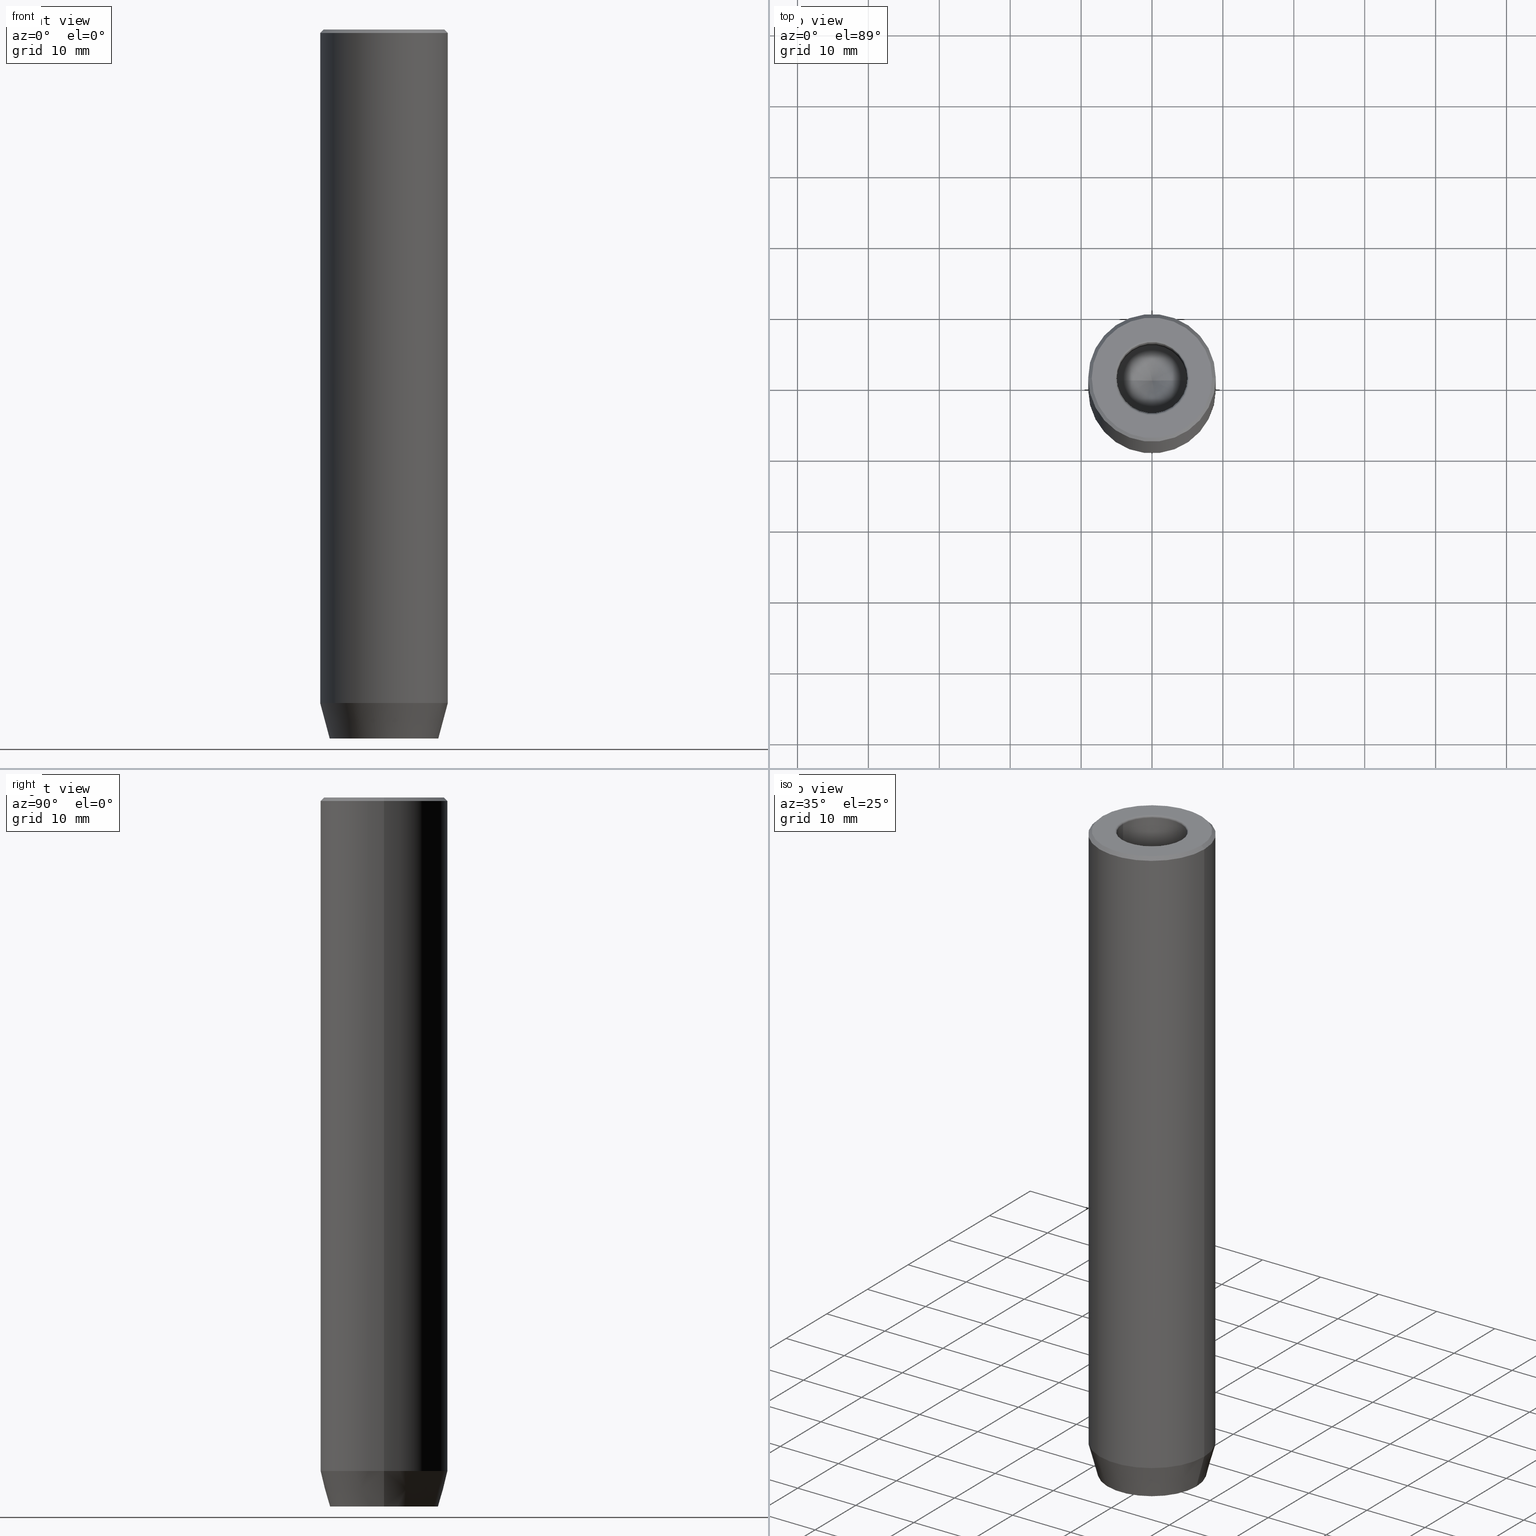
[diagram: canonical four-view strip — front | top / right | iso, engineering-drawing reading convention]
A machine part, canonical four-view strip (front | top / right | iso — engineering-drawing reading convention). The complete STEP part file that produces these views, byte-faithful:
ISO-10303-21;
HEADER;
FILE_DESCRIPTION (( 'STEP AP203' ),
    '1' );
FILE_NAME ('d34d.STEP',
    '2024-01-02T19:10:27',
    ( '' ),
    ( '' ),
    'SwSTEP 2.0',
    'SolidWorks 2019',
    '' );
FILE_SCHEMA (( 'CONFIG_CONTROL_DESIGN' ));
ENDSEC;

DATA;
#1 = DIRECTION ( 'NONE',  ( -0.000000000000000000, -0.000000000000000000, 1.000000000000000000 ) ) ;
#2 = DIRECTION ( 'NONE',  ( 1.224646799147353207E-16, 1.000000000000000000, 0.000000000000000000 ) ) ;
#3 = CARTESIAN_POINT ( 'NONE',  ( 0.000000000000000000, 0.000000000000000000, 0.000000000000000000 ) ) ;
#4 = AXIS2_PLACEMENT_3D ( 'NONE', #120, #448, #29 ) ;
#5 = CC_DESIGN_DATE_AND_TIME_ASSIGNMENT ( #232, #165, ( #350 ) ) ;
#6 = DIRECTION ( 'NONE',  ( -0.000000000000000000, -0.000000000000000000, -1.000000000000000000 ) ) ;
#7 = DIRECTION ( 'NONE',  ( -0.000000000000000000, -0.000000000000000000, 1.000000000000000000 ) ) ;
#8 = LINE ( 'NONE', #147, #43 ) ;
#9 = CARTESIAN_POINT ( 'NONE',  ( -9.000000000000000000, 1.102182119232617714E-15, 0.000000000000000000 ) ) ;
#10 = DIRECTION ( 'NONE',  ( 0.8571673007021120005, 0.000000000000000000, 0.5150380749100547106 ) ) ;
#11 = EDGE_CURVE ( 'NONE', #457, #23, #472, .T. ) ;
#12 = ORIENTED_EDGE ( 'NONE', *, *, #196, .F. ) ;
#13 = LINE ( 'NONE', #492, #134 ) ;
#14 = DIRECTION ( 'NONE',  ( 1.000000000000000000, 0.000000000000000000, 0.000000000000000000 ) ) ;
#15 = VECTOR ( 'NONE', #595, 1000.000000000000000 ) ;
#16 = ORIENTED_EDGE ( 'NONE', *, *, #253, .T. ) ;
#17 = DIRECTION ( 'NONE',  ( -0.000000000000000000, -0.000000000000000000, 1.000000000000000000 ) ) ;
#18 = AXIS2_PLACEMENT_3D ( 'NONE', #593, #379, #193 ) ;
#19 = ORIENTED_EDGE ( 'NONE', *, *, #460, .T. ) ;
#20 = CARTESIAN_POINT ( 'NONE',  ( -4.999999999999997335, 6.123233995736763324E-16, -0.2999999999999999889 ) ) ;
#21 = ADVANCED_FACE ( 'NONE', ( #588 ), #335, .F. ) ;
#22 = LINE ( 'NONE', #211, #257 ) ;
#23 = VERTEX_POINT ( 'NONE', #249 ) ;
#24 = VECTOR ( 'NONE', #107, 1000.000000000000114 ) ;
#25 = ORIENTED_EDGE ( 'NONE', *, *, #37, .T. ) ;
#26 = CARTESIAN_POINT ( 'NONE',  ( 2.168404344971008868E-16, 3.464101615137755275, -100.0000000000000000 ) ) ;
#27 = EDGE_CURVE ( 'NONE', #432, #283, #380, .T. ) ;
#28 = DIRECTION ( 'NONE',  ( 0.8660254037844387076, 0.4999999999999997224, 0.000000000000000000 ) ) ;
#29 = DIRECTION ( 'NONE',  ( 0.8660254037844385966, 0.4999999999999998890, 0.000000000000000000 ) ) ;
#30 = APPROVAL_DATE_TIME ( #57, #542 ) ;
#31 = DATE_AND_TIME ( #445, #396 ) ;
#32 = DIRECTION ( 'NONE',  ( -0.000000000000000000, -0.000000000000000000, 1.000000000000000000 ) ) ;
#33 = APPROVAL_DATE_TIME ( #35, #199 ) ;
#34 = AXIS2_PLACEMENT_3D ( 'NONE', #142, #242, #197 ) ;
#35 = DATE_AND_TIME ( #229, #441 ) ;
#36 = VERTEX_POINT ( 'NONE', #62 ) ;
#37 = EDGE_CURVE ( 'NONE', #600, #133, #209, .T. ) ;
#38 = DIRECTION ( 'NONE',  ( 1.000000000000000000, 0.000000000000000000, 0.000000000000000000 ) ) ;
#39 = EDGE_LOOP ( 'NONE', ( #169, #91, #140, #46 ) ) ;
#40 = ORIENTED_EDGE ( 'NONE', *, *, #440, .F. ) ;
#41 = CARTESIAN_POINT ( 'NONE',  ( -3.000000000000000444, 7.511572993685798115E-16, -100.0000000000000000 ) ) ;
#42 = CARTESIAN_POINT ( 'NONE',  ( -1.499999999999999112, -2.598076211353316012, -94.20000000000000284 ) ) ;
#43 = VECTOR ( 'NONE', #638, 1000.000000000000000 ) ;
#44 = FACE_OUTER_BOUND ( 'NONE', #186, .T. ) ;
#45 = ADVANCED_FACE ( 'NONE', ( #329 ), #539, .T. ) ;
#46 = ORIENTED_EDGE ( 'NONE', *, *, #378, .T. ) ;
#47 = DIRECTION ( 'NONE',  ( 1.000000000000000000, 0.000000000000000000, 0.000000000000000000 ) ) ;
#48 = CARTESIAN_POINT ( 'NONE',  ( 0.000000000000000000, 0.000000000000000000, -20.00000000000000000 ) ) ;
#49 = ORIENTED_EDGE ( 'NONE', *, *, #219, .F. ) ;
#50 = DIRECTION ( 'NONE',  ( -2.503857664561932376E-16, -1.000000000000000000, 0.000000000000000000 ) ) ;
#51 = FACE_OUTER_BOUND ( 'NONE', #128, .T. ) ;
#52 =( NAMED_UNIT ( * ) SI_UNIT ( $, .STERADIAN. ) SOLID_ANGLE_UNIT ( ) );
#53 = CARTESIAN_POINT ( 'NONE',  ( 2.999999999999999556, -7.511572993685796142E-16, -94.20000000000000284 ) ) ;
#54 = LINE ( 'NONE', #590, #308 ) ;
#55 = CARTESIAN_POINT ( 'NONE',  ( 2.999999999999999112, -1.732050807568876971, -100.0000000000000000 ) ) ;
#56 = EDGE_CURVE ( 'NONE', #600, #283, #198, .T. ) ;
#57 = DATE_AND_TIME ( #292, #132 ) ;
#58 = CARTESIAN_POINT ( 'NONE',  ( 0.000000000000000000, 0.000000000000000000, -0.2999999999999999889 ) ) ;
#59 = DIRECTION ( 'NONE',  ( 1.000000000000000000, 0.000000000000000000, 0.000000000000000000 ) ) ;
#60 = APPLICATION_PROTOCOL_DEFINITION ( 'international standard', 'config_control_design', 1994, #500 ) ;
#61 = CARTESIAN_POINT ( 'NONE',  ( 0.000000000000000000, 0.000000000000000000, 0.000000000000000000 ) ) ;
#62 = CARTESIAN_POINT ( 'NONE',  ( -3.000000000000000888, -1.732050807568876527, -100.0000000000000000 ) ) ;
#63 = LINE ( 'NONE', #625, #153 ) ;
#64 = VERTEX_POINT ( 'NONE', #316 ) ;
#65 = CARTESIAN_POINT ( 'NONE',  ( 5.299999999999997158, 0.000000000000000000, -0.2999999999999999889 ) ) ;
#66 =( NAMED_UNIT ( * ) PLANE_ANGLE_UNIT ( ) SI_UNIT ( $, .RADIAN. ) );
#67 = ADVANCED_FACE ( 'NONE', ( #138 ), #327, .F. ) ;
#68 = CIRCLE ( 'NONE', #637, 9.000000000000000000 ) ;
#69 = EDGE_LOOP ( 'NONE', ( #99, #415, #395, #387 ) ) ;
#70 = PERSON_AND_ORGANIZATION_ROLE ( 'design_supplier' ) ;
#71 = CARTESIAN_POINT ( 'NONE',  ( 2.999999999999999556, -7.511572993685796142E-16, -100.0000000000000000 ) ) ;
#72 = VERTEX_POINT ( 'NONE', #381 ) ;
#73 = FACE_OUTER_BOUND ( 'NONE', #136, .T. ) ;
#74 = CARTESIAN_POINT ( 'NONE',  ( -1.499999999999999334, 2.598076211353316456, -94.20000000000000284 ) ) ;
#75 = ADVANCED_FACE ( 'NONE', ( #51 ), #191, .F. ) ;
#76 = ORIENTED_EDGE ( 'NONE', *, *, #455, .T. ) ;
#77 = COORDINATED_UNIVERSAL_TIME_OFFSET ( 1, 0, .AHEAD. ) ;
#78 = ORIENTED_EDGE ( 'NONE', *, *, #622, .T. ) ;
#79 = CARTESIAN_POINT ( 'NONE',  ( 0.000000000000000000, 0.000000000000000000, -0.5000000000000091038 ) ) ;
#80 = VERTEX_POINT ( 'NONE', #391 ) ;
#81 = PERSON_AND_ORGANIZATION ( #574, #366 ) ;
#82 = UNCERTAINTY_MEASURE_WITH_UNIT (LENGTH_MEASURE( 1.000000000000000082E-05 ), #89, 'distance_accuracy_value', 'NONE');
#83 = DIRECTION ( 'NONE',  ( 0.000000000000000000, 0.000000000000000000, 1.000000000000000000 ) ) ;
#84 = CALENDAR_DATE ( 2024, 2, 1 ) ;
#85 = VERTEX_POINT ( 'NONE', #433 ) ;
#86 = DIRECTION ( 'NONE',  ( 1.000000000000000000, 0.000000000000000000, 0.000000000000000000 ) ) ;
#87 = VERTEX_POINT ( 'NONE', #208 ) ;
#88 = ADVANCED_FACE ( 'NONE', ( #73 ), #538, .F. ) ;
#89 =( LENGTH_UNIT ( ) NAMED_UNIT ( * ) SI_UNIT ( .MILLI., .METRE. ) );
#90 = DIRECTION ( 'NONE',  ( 1.000000000000000000, 0.000000000000000000, 0.000000000000000000 ) ) ;
#91 = ORIENTED_EDGE ( 'NONE', *, *, #562, .F. ) ;
#92 = EDGE_LOOP ( 'NONE', ( #447, #461, #233, #577 ) ) ;
#93 = EDGE_CURVE ( 'NONE', #133, #600, #361, .T. ) ;
#94 = DIRECTION ( 'NONE',  ( 2.503857664561932376E-16, 1.000000000000000000, 0.000000000000000000 ) ) ;
#95 = CONICAL_SURFACE ( 'NONE', #456, 4.999999999999995559, 1.029744258676653867 ) ;
#96 = DIRECTION ( 'NONE',  ( -1.000000000000000000, 0.000000000000000000, 0.000000000000000000 ) ) ;
#97 = PERSON_AND_ORGANIZATION_ROLE ( 'creator' ) ;
#98 = LINE ( 'NONE', #372, #442 ) ;
#99 = ORIENTED_EDGE ( 'NONE', *, *, #537, .F. ) ;
#100 = LINE ( 'NONE', #244, #112 ) ;
#101 = VERTEX_POINT ( 'NONE', #513 ) ;
#102 = CARTESIAN_POINT ( 'NONE',  ( 0.000000000000000000, 0.000000000000000000, 0.000000000000000000 ) ) ;
#103 = CARTESIAN_POINT ( 'NONE',  ( 0.000000000000000000, 0.000000000000000000, -95.00000000000000000 ) ) ;
#104 = AXIS2_PLACEMENT_3D ( 'NONE', #416, #516, #141 ) ;
#105 = CIRCLE ( 'NONE', #333, 9.000000000000000000 ) ;
#106 = CARTESIAN_POINT ( 'NONE',  ( -3.000000000000000444, 7.511572993685798115E-16, -94.20000000000000284 ) ) ;
#107 = DIRECTION ( 'NONE',  ( 0.8660254037844387076, -0.4999999999999997780, 0.000000000000000000 ) ) ;
#108 = CARTESIAN_POINT ( 'NONE',  ( 0.000000000000000000, 0.000000000000000000, 0.000000000000000000 ) ) ;
#109 = EDGE_CURVE ( 'NONE', #631, #283, #453, .T. ) ;
#110 = DIRECTION ( 'NONE',  ( -0.000000000000000000, -0.000000000000000000, 1.000000000000000000 ) ) ;
#111 = VERTEX_POINT ( 'NONE', #450 ) ;
#112 = VECTOR ( 'NONE', #290, 1000.000000000000114 ) ;
#113 = PERSON_AND_ORGANIZATION_ROLE ( 'creator' ) ;
#114 = LINE ( 'NONE', #603, #582 ) ;
#115 = AXIS2_PLACEMENT_3D ( 'NONE', #108, #601, #482 ) ;
#116 = EDGE_CURVE ( 'NONE', #360, #413, #68, .T. ) ;
#117 = CARTESIAN_POINT ( 'NONE',  ( 5.299999999999997158, 0.000000000000000000, 0.000000000000000000 ) ) ;
#118 = CARTESIAN_POINT ( 'NONE',  ( 0.000000000000000000, 0.000000000000000000, -95.00000000000000000 ) ) ;
#119 = DIRECTION ( 'NONE',  ( -0.8571673007021120005, 1.049727191138618326E-16, 0.5150380749100547106 ) ) ;
#120 = CARTESIAN_POINT ( 'NONE',  ( 1.499999999999999556, -2.598076211353316012, -94.20000000000000284 ) ) ;
#121 = AXIS2_PLACEMENT_3D ( 'NONE', #474, #429, #373 ) ;
#122 = EDGE_LOOP ( 'NONE', ( #497, #414, #237 ) ) ;
#123 = ORIENTED_EDGE ( 'NONE', *, *, #129, .T. ) ;
#124 = MANIFOLD_SOLID_BREP ( 'Odebrat vysunut�m1', #137 ) ;
#125 = COORDINATED_UNIVERSAL_TIME_OFFSET ( 1, 0, .AHEAD. ) ;
#126 = VERTEX_POINT ( 'NONE', #563 ) ;
#127 = DIRECTION ( 'NONE',  ( -0.8660254037844387076, 0.4999999999999997780, 0.000000000000000000 ) ) ;
#128 = EDGE_LOOP ( 'NONE', ( #263, #189, #499, #495 ) ) ;
#129 = EDGE_CURVE ( 'NONE', #111, #463, #226, .T. ) ;
#130 = PERSON_AND_ORGANIZATION ( #574, #366 ) ;
#131 = LOCAL_TIME ( 20, 10, 27.00000000000000000, #125 ) ;
#132 = LOCAL_TIME ( 20, 10, 27.00000000000000000, #315 ) ;
#133 = VERTEX_POINT ( 'NONE', #312 ) ;
#134 = VECTOR ( 'NONE', #301, 1000.000000000000000 ) ;
#135 = ORIENTED_EDGE ( 'NONE', *, *, #341, .T. ) ;
#136 = EDGE_LOOP ( 'NONE', ( #358, #254, #349, #405 ) ) ;
#137 = CLOSED_SHELL ( 'NONE', ( #515, #610, #272, #296, #411, #227, #247, #185, #45, #390, #302, #480, #551, #321, #88, #503, #67, #348, #75, #21, #571 ) ) ;
#138 = FACE_OUTER_BOUND ( 'NONE', #462, .T. ) ;
#139 = EDGE_CURVE ( 'NONE', #424, #268, #609, .T. ) ;
#140 = ORIENTED_EDGE ( 'NONE', *, *, #109, .T. ) ;
#141 = DIRECTION ( 'NONE',  ( -2.503857664561932376E-16, -1.000000000000000000, 0.000000000000000000 ) ) ;
#142 = CARTESIAN_POINT ( 'NONE',  ( 0.000000000000000000, 0.000000000000000000, -0.5000000000000091038 ) ) ;
#143 = CONICAL_SURFACE ( 'NONE', #509, 8.499999999999980460, 0.7853981633974587151 ) ;
#144 = DIRECTION ( 'NONE',  ( -2.503857664561932376E-16, -1.000000000000000000, 0.000000000000000000 ) ) ;
#145 = DIRECTION ( 'NONE',  ( 0.2588190451025214611, 0.000000000000000000, 0.9659258262890679791 ) ) ;
#146 = EDGE_CURVE ( 'NONE', #268, #424, #367, .T. ) ;
#147 = CARTESIAN_POINT ( 'NONE',  ( 8.499999999999980460, 1.040949779275247773E-15, 0.000000000000000000 ) ) ;
#148 = FACE_OUTER_BOUND ( 'NONE', #271, .T. ) ;
#149 = DIRECTION ( 'NONE',  ( -1.000000000000000000, 0.000000000000000000, -0.000000000000000000 ) ) ;
#150 = CC_DESIGN_APPROVAL ( #199, ( #484 ) ) ;
#151 = AXIS2_PLACEMENT_3D ( 'NONE', #278, #1, #14 ) ;
#152 = DIRECTION ( 'NONE',  ( -0.4999999999999998335, -0.8660254037844387076, 0.000000000000000000 ) ) ;
#153 = VECTOR ( 'NONE', #119, 1000.000000000000000 ) ;
#154 = PRODUCT_DEFINITION_SHAPE ( 'NONE', 'NONE',  #467 ) ;
#155 = ORIENTED_EDGE ( 'NONE', *, *, #93, .F. ) ;
#156 = EDGE_CURVE ( 'NONE', #111, #80, #98, .T. ) ;
#157 = ORIENTED_EDGE ( 'NONE', *, *, #253, .F. ) ;
#158 = CARTESIAN_POINT ( 'NONE',  ( 0.000000000000000000, 0.000000000000000000, -20.00000000000000000 ) ) ;
#159 = DIRECTION ( 'NONE',  ( -0.000000000000000000, -0.000000000000000000, 1.000000000000000000 ) ) ;
#160 = DIRECTION ( 'NONE',  ( -0.000000000000000000, -0.000000000000000000, 1.000000000000000000 ) ) ;
#161 = FACE_BOUND ( 'NONE', #409, .T. ) ;
#162 = AXIS2_PLACEMENT_3D ( 'NONE', #337, #469, #47 ) ;
#163 = EDGE_CURVE ( 'NONE', #368, #605, #334, .T. ) ;
#164 = LINE ( 'NONE', #215, #351 ) ;
#165 = DATE_TIME_ROLE ( 'classification_date' ) ;
#166 = CC_DESIGN_PERSON_AND_ORGANIZATION_ASSIGNMENT ( #81, #218, ( #350 ) ) ;
#167 = APPROVAL_STATUS ( 'not_yet_approved' ) ;
#168 = ORIENTED_EDGE ( 'NONE', *, *, #219, .T. ) ;
#169 = ORIENTED_EDGE ( 'NONE', *, *, #430, .F. ) ;
#170 = EDGE_LOOP ( 'NONE', ( #49, #505 ) ) ;
#171 = VECTOR ( 'NONE', #246, 1000.000000000000000 ) ;
#172 = DIRECTION ( 'NONE',  ( -1.000000000000000000, 0.000000000000000000, -0.000000000000000000 ) ) ;
#173 = CARTESIAN_POINT ( 'NONE',  ( 8.499999999999980460, 1.071565949253932744E-15, 0.000000000000000000 ) ) ;
#174 = ORIENTED_EDGE ( 'NONE', *, *, #309, .F. ) ;
#175 = EDGE_CURVE ( 'NONE', #463, #101, #535, .T. ) ;
#176 = DIRECTION ( 'NONE',  ( 0.000000000000000000, 0.000000000000000000, -1.000000000000000000 ) ) ;
#177 = AXIS2_PLACEMENT_3D ( 'NONE', #343, #176, #275 ) ;
#178 = ORIENTED_EDGE ( 'NONE', *, *, #354, .F. ) ;
#179 = ORIENTED_EDGE ( 'NONE', *, *, #116, .F. ) ;
#180 = ORIENTED_EDGE ( 'NONE', *, *, #464, .F. ) ;
#181 = ORIENTED_EDGE ( 'NONE', *, *, #261, .T. ) ;
#182 = CARTESIAN_POINT ( 'NONE',  ( 9.000000000000000000, 0.000000000000000000, -95.00000000000000000 ) ) ;
#183 = ORIENTED_EDGE ( 'NONE', *, *, #175, .F. ) ;
#184 = VECTOR ( 'NONE', #340, 999.9999999999998863 ) ;
#185 = ADVANCED_FACE ( 'NONE', ( #398, #471 ), #205, .T. ) ;
#186 = EDGE_LOOP ( 'NONE', ( #306, #19, #507, #569 ) ) ;
#187 = ORIENTED_EDGE ( 'NONE', *, *, #156, .F. ) ;
#188 = DIRECTION ( 'NONE',  ( 1.000000000000000000, 0.000000000000000000, 0.000000000000000000 ) ) ;
#189 = ORIENTED_EDGE ( 'NONE', *, *, #584, .F. ) ;
#190 = CARTESIAN_POINT ( 'NONE',  ( 4.999999999999995559, 0.000000000000000000, -20.00000000000000000 ) ) ;
#191 = PLANE ( 'NONE',  #260 ) ;
#192 = CONICAL_SURFACE ( 'NONE', #624, 8.499999999999980460, 0.7853981633974587151 ) ;
#193 = DIRECTION ( 'NONE',  ( -0.8660254037844387076, 0.4999999999999998335, 0.000000000000000000 ) ) ;
#194 = DIRECTION ( 'NONE',  ( -1.000000000000000000, 0.000000000000000000, 0.000000000000000000 ) ) ;
#195 = DIRECTION ( 'NONE',  ( 0.000000000000000000, -0.000000000000000000, 1.000000000000000000 ) ) ;
#196 = EDGE_CURVE ( 'NONE', #287, #80, #54, .T. ) ;
#197 = DIRECTION ( 'NONE',  ( 1.000000000000000000, 0.000000000000000000, 0.000000000000000000 ) ) ;
#198 = CIRCLE ( 'NONE', #288, 0.2999999999999999889 ) ;
#199 = APPROVAL ( #167, 'NEUR�EN�' ) ;
#200 = EDGE_LOOP ( 'NONE', ( #452, #181, #276 ) ) ;
#201 = CARTESIAN_POINT ( 'NONE',  ( 0.000000000000000000, 0.000000000000000000, -20.00000000000000000 ) ) ;
#202 = ORIENTED_EDGE ( 'NONE', *, *, #56, .F. ) ;
#203 = CC_DESIGN_SECURITY_CLASSIFICATION ( #350, ( #484 ) ) ;
#204 = PERSON_AND_ORGANIZATION ( #574, #366 ) ;
#205 = PLANE ( 'NONE',  #596 ) ;
#206 = EDGE_CURVE ( 'NONE', #101, #87, #216, .T. ) ;
#207 = VECTOR ( 'NONE', #10, 1000.000000000000000 ) ;
#208 = CARTESIAN_POINT ( 'NONE',  ( 0.000000000000000000, 3.464101615137753054, -94.20000000000000284 ) ) ;
#209 = CIRCLE ( 'NONE', #565, 5.299999999999997158 ) ;
#210 = DIRECTION ( 'NONE',  ( -0.000000000000000000, -0.000000000000000000, 1.000000000000000000 ) ) ;
#211 = CARTESIAN_POINT ( 'NONE',  ( -1.499999999999999112, -2.598076211353316012, -100.0000000000000000 ) ) ;
#212 = DIRECTION ( 'NONE',  ( 1.000000000000000000, 0.000000000000000000, 0.000000000000000000 ) ) ;
#213 = DIRECTION ( 'NONE',  ( -0.000000000000000000, -0.000000000000000000, -1.000000000000000000 ) ) ;
#214 = ORIENTED_EDGE ( 'NONE', *, *, #639, .T. ) ;
#215 = CARTESIAN_POINT ( 'NONE',  ( -4.999999999999997335, 6.123233995736763324E-16, 0.000000000000000000 ) ) ;
#216 = LINE ( 'NONE', #74, #299 ) ;
#217 = CIRCLE ( 'NONE', #426, 0.2999999999999999334 ) ;
#218 = PERSON_AND_ORGANIZATION_ROLE ( 'classification_officer' ) ;
#219 = EDGE_CURVE ( 'NONE', #126, #418, #359, .T. ) ;
#220 = PLANE ( 'NONE',  #417 ) ;
#221 = DIRECTION ( 'NONE',  ( -0.8660254037844387076, -0.4999999999999997780, 0.000000000000000000 ) ) ;
#222 = FACE_OUTER_BOUND ( 'NONE', #92, .T. ) ;
#223 = FACE_OUTER_BOUND ( 'NONE', #383, .T. ) ;
#224 = DIRECTION ( 'NONE',  ( 0.000000000000000000, 0.000000000000000000, -1.000000000000000000 ) ) ;
#225 = VERTEX_POINT ( 'NONE', #346 ) ;
#226 = LINE ( 'NONE', #42, #345 ) ;
#227 = ADVANCED_FACE ( 'NONE', ( #543 ), #382, .T. ) ;
#228 = APPROVAL_PERSON_ORGANIZATION ( #252, #542, #402 ) ;
#229 = CALENDAR_DATE ( 2024, 2, 1 ) ;
#230 = DIRECTION ( 'NONE',  ( -0.000000000000000000, -0.000000000000000000, 1.000000000000000000 ) ) ;
#231 = CC_DESIGN_PERSON_AND_ORGANIZATION_ASSIGNMENT ( #399, #70, ( #484 ) ) ;
#232 = DATE_AND_TIME ( #84, #265 ) ;
#233 = ORIENTED_EDGE ( 'NONE', *, *, #27, .T. ) ;
#234 = ORIENTED_EDGE ( 'NONE', *, *, #475, .T. ) ;
#235 = EDGE_CURVE ( 'NONE', #72, #631, #597, .T. ) ;
#236 = VECTOR ( 'NONE', #94, 1000.000000000000000 ) ;
#237 = ORIENTED_EDGE ( 'NONE', *, *, #562, .T. ) ;
#238 = VECTOR ( 'NONE', #404, 1000.000000000000000 ) ;
#239 = TOROIDAL_SURFACE ( 'NONE', #284, 5.299999999999997158, 0.2999999999999999889 ) ;
#240 = DIRECTION ( 'NONE',  ( -0.000000000000000000, -0.000000000000000000, 1.000000000000000000 ) ) ;
#241 = ORIENTED_EDGE ( 'NONE', *, *, #309, .T. ) ;
#242 = DIRECTION ( 'NONE',  ( 0.000000000000000000, 0.000000000000000000, -1.000000000000000000 ) ) ;
#243 = CARTESIAN_POINT ( 'NONE',  ( -1.499999999999999112, -2.598076211353316012, -94.20000000000000284 ) ) ;
#244 = CARTESIAN_POINT ( 'NONE',  ( 1.499999999999999112, 2.598076211353316012, -100.0000000000000000 ) ) ;
#245 = CARTESIAN_POINT ( 'NONE',  ( 4.999999999999997335, 0.000000000000000000, -0.2999999999999999889 ) ) ;
#246 = DIRECTION ( 'NONE',  ( -0.000000000000000000, -0.000000000000000000, 1.000000000000000000 ) ) ;
#247 = ADVANCED_FACE ( 'NONE', ( #161, #393 ), #608, .T. ) ;
#248 = AXIS2_PLACEMENT_3D ( 'NONE', #443, #483, #255 ) ;
#249 = CARTESIAN_POINT ( 'NONE',  ( 2.999999999999999112, -1.732050807568876971, -94.20000000000000284 ) ) ;
#250 = DIRECTION ( 'NONE',  ( -0.000000000000000000, -0.000000000000000000, 1.000000000000000000 ) ) ;
#251 = CARTESIAN_POINT ( 'NONE',  ( -7.660254037844380193, 1.020146339021394272E-15, -100.0000000000000000 ) ) ;
#252 = PERSON_AND_ORGANIZATION ( #574, #366 ) ;
#253 = EDGE_CURVE ( 'NONE', #87, #457, #384, .T. ) ;
#254 = ORIENTED_EDGE ( 'NONE', *, *, #420, .F. ) ;
#255 = DIRECTION ( 'NONE',  ( 1.000000000000000000, 0.000000000000000000, 0.000000000000000000 ) ) ;
#256 = VECTOR ( 'NONE', #289, 1000.000000000000000 ) ;
#257 = VECTOR ( 'NONE', #446, 1000.000000000000114 ) ;
#258 = CARTESIAN_POINT ( 'NONE',  ( 0.000000000000000000, 0.000000000000000000, -0.2999999999999999889 ) ) ;
#259 = EDGE_LOOP ( 'NONE', ( #421, #438, #364, #281 ) ) ;
#260 = AXIS2_PLACEMENT_3D ( 'NONE', #330, #377, #521 ) ;
#261 = EDGE_CURVE ( 'NONE', #225, #72, #63, .T. ) ;
#262 = PERSON_AND_ORGANIZATION ( #574, #366 ) ;
#263 = ORIENTED_EDGE ( 'NONE', *, *, #279, .T. ) ;
#264 = DIRECTION ( 'NONE',  ( -0.000000000000000000, -0.000000000000000000, 1.000000000000000000 ) ) ;
#265 = LOCAL_TIME ( 20, 10, 27.00000000000000000, #617 ) ;
#266 = VECTOR ( 'NONE', #145, 1000.000000000000114 ) ;
#267 = DIRECTION ( 'NONE',  ( -0.000000000000000000, -0.000000000000000000, 1.000000000000000000 ) ) ;
#268 = VERTEX_POINT ( 'NONE', #173 ) ;
#269 = APPROVAL_STATUS ( 'not_yet_approved' ) ;
#270 = AXIS2_PLACEMENT_3D ( 'NONE', #606, #490, #221 ) ;
#271 = EDGE_LOOP ( 'NONE', ( #168, #319, #179, #40 ) ) ;
#272 = ADVANCED_FACE ( 'NONE', ( #392 ), #95, .F. ) ;
#273 = CARTESIAN_POINT ( 'NONE',  ( 4.999999999999997335, 0.000000000000000000, 0.000000000000000000 ) ) ;
#274 = ORIENTED_EDGE ( 'NONE', *, *, #594, .T. ) ;
#275 = DIRECTION ( 'NONE',  ( 1.000000000000000000, 0.000000000000000000, 0.000000000000000000 ) ) ;
#276 = ORIENTED_EDGE ( 'NONE', *, *, #235, .T. ) ;
#277 = AXIS2_PLACEMENT_3D ( 'NONE', #158, #300, #489 ) ;
#278 = CARTESIAN_POINT ( 'NONE',  ( 0.000000000000000000, 0.000000000000000000, 0.000000000000000000 ) ) ;
#279 = EDGE_CURVE ( 'NONE', #85, #287, #549, .T. ) ;
#280 = ORIENTED_EDGE ( 'NONE', *, *, #163, .F. ) ;
#281 = ORIENTED_EDGE ( 'NONE', *, *, #475, .F. ) ;
#282 = CC_DESIGN_DATE_AND_TIME_ASSIGNMENT ( #305, #355, ( #467 ) ) ;
#283 = VERTEX_POINT ( 'NONE', #245 ) ;
#284 = AXIS2_PLACEMENT_3D ( 'NONE', #58, #250, #428 ) ;
#285 = ORIENTED_EDGE ( 'NONE', *, *, #139, .F. ) ;
#286 = EDGE_CURVE ( 'NONE', #23, #111, #425, .T. ) ;
#287 = VERTEX_POINT ( 'NONE', #55 ) ;
#288 = AXIS2_PLACEMENT_3D ( 'NONE', #65, #566, #576 ) ;
#289 = DIRECTION ( 'NONE',  ( 2.503857664561932376E-16, 1.000000000000000000, 0.000000000000000000 ) ) ;
#290 = DIRECTION ( 'NONE',  ( 0.8660254037844387076, -0.4999999999999997780, 0.000000000000000000 ) ) ;
#291 = DIRECTION ( 'NONE',  ( 1.000000000000000000, 0.000000000000000000, 0.000000000000000000 ) ) ;
#292 = CALENDAR_DATE ( 2024, 2, 1 ) ;
#293 = CARTESIAN_POINT ( 'NONE',  ( -1.499999999999999334, 2.598076211353316456, -100.0000000000000000 ) ) ;
#294 = DIRECTION ( 'NONE',  ( 0.000000000000000000, 0.000000000000000000, -1.000000000000000000 ) ) ;
#295 = DIRECTION ( 'NONE',  ( -0.000000000000000000, -0.000000000000000000, 1.000000000000000000 ) ) ;
#296 = ADVANCED_FACE ( 'NONE', ( #44 ), #143, .T. ) ;
#297 = CARTESIAN_POINT ( 'NONE',  ( 0.000000000000000000, 0.000000000000000000, 0.000000000000000000 ) ) ;
#298 = VERTEX_POINT ( 'NONE', #531 ) ;
#299 = VECTOR ( 'NONE', #28, 1000.000000000000114 ) ;
#300 = DIRECTION ( 'NONE',  ( -0.000000000000000000, -0.000000000000000000, 1.000000000000000000 ) ) ;
#301 = DIRECTION ( 'NONE',  ( -0.000000000000000000, -0.000000000000000000, -1.000000000000000000 ) ) ;
#302 = ADVANCED_FACE ( 'NONE', ( #336 ), #192, .T. ) ;
#303 = APPROVAL_DATE_TIME ( #31, #394 ) ;
#304 = ORIENTED_EDGE ( 'NONE', *, *, #331, .F. ) ;
#305 = DATE_AND_TIME ( #491, #131 ) ;
#306 = ORIENTED_EDGE ( 'NONE', *, *, #146, .F. ) ;
#307 = AXIS2_PLACEMENT_3D ( 'NONE', #313, #83, #90 ) ;
#308 = VECTOR ( 'NONE', #532, 999.9999999999998863 ) ;
#309 = EDGE_CURVE ( 'NONE', #133, #432, #217, .T. ) ;
#310 = COORDINATED_UNIVERSAL_TIME_OFFSET ( 1, 0, .AHEAD. ) ;
#311 = AXIS2_PLACEMENT_3D ( 'NONE', #427, #7, #188 ) ;
#312 = CARTESIAN_POINT ( 'NONE',  ( -5.299999999999997158, 6.490628035480969952E-16, 0.000000000000000000 ) ) ;
#313 = CARTESIAN_POINT ( 'NONE',  ( 0.000000000000000000, 0.000000000000000000, 0.000000000000000000 ) ) ;
#314 = EDGE_LOOP ( 'NONE', ( #174, #510, #554, #458 ) ) ;
#315 = COORDINATED_UNIVERSAL_TIME_OFFSET ( 1, 0, .AHEAD. ) ;
#316 = CARTESIAN_POINT ( 'NONE',  ( -9.000000000000000000, 1.102182119232617714E-15, -0.5000000000000091038 ) ) ;
#317 = CC_DESIGN_APPROVAL ( #394, ( #350 ) ) ;
#318 = CIRCLE ( 'NONE', #121, 4.999999999999997335 ) ;
#319 = ORIENTED_EDGE ( 'NONE', *, *, #537, .T. ) ;
#320 = EDGE_LOOP ( 'NONE', ( #325, #285, #135, #559 ) ) ;
#321 = ADVANCED_FACE ( 'NONE', ( #585 ), #239, .T. ) ;
#322 = ORIENTED_EDGE ( 'NONE', *, *, #286, .T. ) ;
#323 = PLANE ( 'NONE',  #104 ) ;
#324 = DIRECTION ( 'NONE',  ( -0.000000000000000000, -0.000000000000000000, 1.000000000000000000 ) ) ;
#325 = ORIENTED_EDGE ( 'NONE', *, *, #460, .F. ) ;
#326 = FACE_OUTER_BOUND ( 'NONE', #69, .T. ) ;
#327 = PLANE ( 'NONE',  #540 ) ;
#328 = ORIENTED_EDGE ( 'NONE', *, *, #455, .F. ) ;
#329 = FACE_OUTER_BOUND ( 'NONE', #520, .T. ) ;
#330 = CARTESIAN_POINT ( 'NONE',  ( 2.999999999999999556, -7.511572993685796142E-16, -94.20000000000000284 ) ) ;
#331 = EDGE_CURVE ( 'NONE', #413, #64, #528, .T. ) ;
#332 = CONICAL_SURFACE ( 'NONE', #162, 9.000000000000000000, 0.2617993877991502405 ) ;
#333 = AXIS2_PLACEMENT_3D ( 'NONE', #79, #224, #568 ) ;
#334 = LINE ( 'NONE', #293, #494 ) ;
#335 = PLANE ( 'NONE',  #18 ) ;
#336 = FACE_OUTER_BOUND ( 'NONE', #320, .T. ) ;
#337 = CARTESIAN_POINT ( 'NONE',  ( 0.000000000000000000, 0.000000000000000000, -95.00000000000000000 ) ) ;
#338 = CC_DESIGN_PERSON_AND_ORGANIZATION_ASSIGNMENT ( #548, #113, ( #484 ) ) ;
#339 = VECTOR ( 'NONE', #324, 1000.000000000000000 ) ;
#340 = DIRECTION ( 'NONE',  ( -0.8660254037844387076, -0.4999999999999999445, 0.000000000000000000 ) ) ;
#341 = EDGE_CURVE ( 'NONE', #424, #64, #591, .T. ) ;
#342 = TOROIDAL_SURFACE ( 'NONE', #560, 5.299999999999997158, 0.2999999999999999889 ) ;
#343 = CARTESIAN_POINT ( 'NONE',  ( 0.000000000000000000, 0.000000000000000000, 0.000000000000000000 ) ) ;
#344 = DIRECTION ( 'NONE',  ( 1.000000000000000000, 0.000000000000000000, 0.000000000000000000 ) ) ;
#345 = VECTOR ( 'NONE', #127, 1000.000000000000114 ) ;
#346 = CARTESIAN_POINT ( 'NONE',  ( -5.477553227319343599E-15, 0.000000000000000000, -23.00430309513780003 ) ) ;
#347 = DIRECTION ( 'NONE',  ( 1.000000000000000000, 0.000000000000000000, 0.000000000000000000 ) ) ;
#348 = ADVANCED_FACE ( 'NONE', ( #546 ), #555, .F. ) ;
#349 = ORIENTED_EDGE ( 'NONE', *, *, #206, .F. ) ;
#350 = SECURITY_CLASSIFICATION ( '', '', #501 ) ;
#351 = VECTOR ( 'NONE', #264, 1000.000000000000000 ) ;
#352 = CARTESIAN_POINT ( 'NONE',  ( 2.999999999999999112, -1.732050807568876971, -94.20000000000000284 ) ) ;
#353 = ORIENTED_EDGE ( 'NONE', *, *, #594, .F. ) ;
#354 = EDGE_CURVE ( 'NONE', #101, #368, #602, .T. ) ;
#355 = DATE_TIME_ROLE ( 'creation_date' ) ;
#356 = ORIENTED_EDGE ( 'NONE', *, *, #11, .T. ) ;
#357 = CYLINDRICAL_SURFACE ( 'NONE', #615, 4.999999999999997335 ) ;
#358 = ORIENTED_EDGE ( 'NONE', *, *, #163, .T. ) ;
#359 = CIRCLE ( 'NONE', #248, 7.660254037844380193 ) ;
#360 = VERTEX_POINT ( 'NONE', #508 ) ;
#361 = CIRCLE ( 'NONE', #177, 5.299999999999997158 ) ;
#362 = ORIENTED_EDGE ( 'NONE', *, *, #129, .F. ) ;
#363 = ORIENTED_EDGE ( 'NONE', *, *, #365, .T. ) ;
#364 = ORIENTED_EDGE ( 'NONE', *, *, #401, .T. ) ;
#365 = EDGE_CURVE ( 'NONE', #463, #36, #514, .T. ) ;
#366 = ORGANIZATION ( 'NEUR�EN�', 'NEUR�EN�', '' ) ;
#367 = CIRCLE ( 'NONE', #151, 8.499999999999980460 ) ;
#368 = VERTEX_POINT ( 'NONE', #376 ) ;
#369 = ORIENTED_EDGE ( 'NONE', *, *, #584, .T. ) ;
#370 = DIRECTION ( 'NONE',  ( 1.000000000000000000, 0.000000000000000000, 0.000000000000000000 ) ) ;
#371 = EDGE_CURVE ( 'NONE', #225, #631, #579, .T. ) ;
#372 = CARTESIAN_POINT ( 'NONE',  ( 0.000000000000000000, -3.464101615137753942, -94.20000000000000284 ) ) ;
#373 = DIRECTION ( 'NONE',  ( 1.000000000000000000, 0.000000000000000000, 0.000000000000000000 ) ) ;
#374 = VECTOR ( 'NONE', #50, 1000.000000000000000 ) ;
#375 = DIRECTION ( 'NONE',  ( -1.000000000000000000, 1.224646799147353207E-16, 0.000000000000000000 ) ) ;
#376 = CARTESIAN_POINT ( 'NONE',  ( -3.000000000000000000, 1.732050807568877859, -100.0000000000000000 ) ) ;
#377 = DIRECTION ( 'NONE',  ( 1.000000000000000000, -2.503857664561932376E-16, 0.000000000000000000 ) ) ;
#378 = EDGE_CURVE ( 'NONE', #283, #432, #318, .T. ) ;
#379 = DIRECTION ( 'NONE',  ( 0.4999999999999998335, 0.8660254037844387076, -0.000000000000000000 ) ) ;
#380 = CIRCLE ( 'NONE', #311, 4.999999999999997335 ) ;
#381 = CARTESIAN_POINT ( 'NONE',  ( -4.999999999999995559, 6.123233995736761352E-16, -20.00000000000000000 ) ) ;
#382 = CYLINDRICAL_SURFACE ( 'NONE', #406, 9.000000000000000000 ) ;
#383 = EDGE_LOOP ( 'NONE', ( #502, #16, #356, #322, #123, #634 ) ) ;
#384 = LINE ( 'NONE', #536, #24 ) ;
#385 = VECTOR ( 'NONE', #386, 1000.000000000000114 ) ;
#386 = DIRECTION ( 'NONE',  ( -0.2588190451025214611, 3.169619151431774186E-17, 0.9659258262890679791 ) ) ;
#387 = ORIENTED_EDGE ( 'NONE', *, *, #622, .F. ) ;
#388 = EDGE_LOOP ( 'NONE', ( #25, #459 ) ) ;
#389 = DIRECTION ( 'NONE',  ( 1.000000000000000000, 0.000000000000000000, 0.000000000000000000 ) ) ;
#390 = ADVANCED_FACE ( 'NONE', ( #326 ), #332, .T. ) ;
#391 = CARTESIAN_POINT ( 'NONE',  ( 0.000000000000000000, -3.464101615137753942, -100.0000000000000000 ) ) ;
#392 = FACE_OUTER_BOUND ( 'NONE', #200, .T. ) ;
#393 = FACE_OUTER_BOUND ( 'NONE', #170, .T. ) ;
#394 = APPROVAL ( #403, 'NEUR�EN�' ) ;
#395 = ORIENTED_EDGE ( 'NONE', *, *, #440, .T. ) ;
#396 = LOCAL_TIME ( 20, 10, 27.00000000000000000, #77 ) ;
#397 = CIRCLE ( 'NONE', #34, 9.000000000000000000 ) ;
#398 = FACE_BOUND ( 'NONE', #388, .T. ) ;
#399 = PERSON_AND_ORGANIZATION ( #574, #366 ) ;
#400 = EDGE_LOOP ( 'NONE', ( #620, #187, #623, #369 ) ) ;
#401 = EDGE_CURVE ( 'NONE', #64, #298, #397, .T. ) ;
#402 = APPROVAL_ROLE ( '' ) ;
#403 = APPROVAL_STATUS ( 'not_yet_approved' ) ;
#404 = DIRECTION ( 'NONE',  ( -0.000000000000000000, -0.000000000000000000, -1.000000000000000000 ) ) ;
#405 = ORIENTED_EDGE ( 'NONE', *, *, #354, .T. ) ;
#406 = AXIS2_PLACEMENT_3D ( 'NONE', #61, #17, #344 ) ;
#407 = EDGE_LOOP ( 'NONE', ( #550, #627 ) ) ;
#408 = MECHANICAL_CONTEXT ( 'NONE', #468, 'mechanical' ) ;
#409 = EDGE_LOOP ( 'NONE', ( #280, #180, #353, #12, #498, #328 ) ) ;
#410 = DESIGN_CONTEXT ( 'detailed design', #500, 'design' ) ;
#411 = ADVANCED_FACE ( 'NONE', ( #148 ), #598, .T. ) ;
#412 = ORIENTED_EDGE ( 'NONE', *, *, #365, .F. ) ;
#413 = VERTEX_POINT ( 'NONE', #422 ) ;
#414 = ORIENTED_EDGE ( 'NONE', *, *, #371, .T. ) ;
#415 = ORIENTED_EDGE ( 'NONE', *, *, #436, .T. ) ;
#416 = CARTESIAN_POINT ( 'NONE',  ( -3.000000000000000444, 7.511572993685798115E-16, -94.20000000000000284 ) ) ;
#417 = AXIS2_PLACEMENT_3D ( 'NONE', #553, #557, #172 ) ;
#418 = VERTEX_POINT ( 'NONE', #251 ) ;
#419 = FACE_OUTER_BOUND ( 'NONE', #519, .T. ) ;
#420 = EDGE_CURVE ( 'NONE', #87, #605, #13, .T. ) ;
#421 = ORIENTED_EDGE ( 'NONE', *, *, #116, .T. ) ;
#422 = CARTESIAN_POINT ( 'NONE',  ( -9.000000000000000000, 1.102182119232617714E-15, -95.00000000000000000 ) ) ;
#423 = CARTESIAN_POINT ( 'NONE',  ( -8.499999999999980460, 0.000000000000000000, 0.000000000000000000 ) ) ;
#424 = VERTEX_POINT ( 'NONE', #616 ) ;
#425 = LINE ( 'NONE', #586, #184 ) ;
#426 = AXIS2_PLACEMENT_3D ( 'NONE', #523, #2, #375 ) ;
#427 = CARTESIAN_POINT ( 'NONE',  ( 0.000000000000000000, 0.000000000000000000, -0.2999999999999999889 ) ) ;
#428 = DIRECTION ( 'NONE',  ( 1.000000000000000000, 0.000000000000000000, 0.000000000000000000 ) ) ;
#429 = DIRECTION ( 'NONE',  ( -0.000000000000000000, -0.000000000000000000, 1.000000000000000000 ) ) ;
#430 = EDGE_CURVE ( 'NONE', #72, #432, #164, .T. ) ;
#431 = VECTOR ( 'NONE', #144, 1000.000000000000000 ) ;
#432 = VERTEX_POINT ( 'NONE', #20 ) ;
#433 = CARTESIAN_POINT ( 'NONE',  ( 3.000000000000000000, 1.732050807568877193, -100.0000000000000000 ) ) ;
#434 = CONICAL_SURFACE ( 'NONE', #522, 4.999999999999995559, 1.029744258676653867 ) ;
#435 = CARTESIAN_POINT ( 'NONE',  ( -9.000000000000000000, 1.102182119232617714E-15, -95.00000000000000000 ) ) ;
#436 = EDGE_CURVE ( 'NONE', #418, #126, #485, .T. ) ;
#437 = FACE_OUTER_BOUND ( 'NONE', #39, .T. ) ;
#438 = ORIENTED_EDGE ( 'NONE', *, *, #331, .T. ) ;
#439 = APPROVAL_ROLE ( '' ) ;
#440 = EDGE_CURVE ( 'NONE', #126, #360, #527, .T. ) ;
#441 = LOCAL_TIME ( 20, 10, 27.00000000000000000, #310 ) ;
#442 = VECTOR ( 'NONE', #6, 1000.000000000000000 ) ;
#443 = CARTESIAN_POINT ( 'NONE',  ( 0.000000000000000000, 0.000000000000000000, -100.0000000000000000 ) ) ;
#444 = AXIS2_PLACEMENT_3D ( 'NONE', #201, #487, #389 ) ;
#445 = CALENDAR_DATE ( 2024, 2, 1 ) ;
#446 = DIRECTION ( 'NONE',  ( -0.8660254037844387076, 0.4999999999999997780, 0.000000000000000000 ) ) ;
#447 = ORIENTED_EDGE ( 'NONE', *, *, #235, .F. ) ;
#448 = DIRECTION ( 'NONE',  ( 0.4999999999999999445, -0.8660254037844387076, 0.000000000000000000 ) ) ;
#449 = CARTESIAN_POINT ( 'NONE',  ( 0.000000000000000000, 0.000000000000000000, 0.000000000000000000 ) ) ;
#450 = CARTESIAN_POINT ( 'NONE',  ( 0.000000000000000000, -3.464101615137753942, -94.20000000000000284 ) ) ;
#451 = DIRECTION ( 'NONE',  ( -0.000000000000000000, -0.000000000000000000, -1.000000000000000000 ) ) ;
#452 = ORIENTED_EDGE ( 'NONE', *, *, #371, .F. ) ;
#453 = LINE ( 'NONE', #273, #339 ) ;
#454 = APPLICATION_PROTOCOL_DEFINITION ( 'international standard', 'config_control_design', 1994, #468 ) ;
#455 = EDGE_CURVE ( 'NONE', #605, #85, #100, .T. ) ;
#456 = AXIS2_PLACEMENT_3D ( 'NONE', #607, #159, #614 ) ;
#457 = VERTEX_POINT ( 'NONE', #473 ) ;
#458 = ORIENTED_EDGE ( 'NONE', *, *, #27, .F. ) ;
#459 = ORIENTED_EDGE ( 'NONE', *, *, #93, .T. ) ;
#460 = EDGE_CURVE ( 'NONE', #268, #298, #8, .T. ) ;
#461 = ORIENTED_EDGE ( 'NONE', *, *, #430, .T. ) ;
#462 = EDGE_LOOP ( 'NONE', ( #274, #412, #362, #564 ) ) ;
#463 = VERTEX_POINT ( 'NONE', #580 ) ;
#464 = EDGE_CURVE ( 'NONE', #36, #368, #525, .T. ) ;
#465 = DIRECTION ( 'NONE',  ( 1.000000000000000000, 0.000000000000000000, 0.000000000000000000 ) ) ;
#466 = VECTOR ( 'NONE', #451, 1000.000000000000000 ) ;
#467 = PRODUCT_DEFINITION ( 'NEZN�M�', '', #484, #410 ) ;
#468 = APPLICATION_CONTEXT ( 'configuration controlled 3d designs of mechanical parts and assemblies' ) ;
#469 = DIRECTION ( 'NONE',  ( -0.000000000000000000, -0.000000000000000000, 1.000000000000000000 ) ) ;
#470 = DIRECTION ( 'NONE',  ( 0.8660254037844387076, -0.4999999999999998335, 0.000000000000000000 ) ) ;
#471 = FACE_OUTER_BOUND ( 'NONE', #407, .T. ) ;
#472 = LINE ( 'NONE', #53, #431 ) ;
#473 = CARTESIAN_POINT ( 'NONE',  ( 3.000000000000000000, 1.732050807568877193, -94.20000000000000284 ) ) ;
#474 = CARTESIAN_POINT ( 'NONE',  ( 0.000000000000000000, 0.000000000000000000, -0.2999999999999999889 ) ) ;
#475 = EDGE_CURVE ( 'NONE', #360, #298, #578, .T. ) ;
#476 = VECTOR ( 'NONE', #240, 1000.000000000000000 ) ;
#477 = DIRECTION ( 'NONE',  ( -0.000000000000000000, -0.000000000000000000, -1.000000000000000000 ) ) ;
#478 = FACE_OUTER_BOUND ( 'NONE', #511, .T. ) ;
#479 = LINE ( 'NONE', #435, #385 ) ;
#480 = ADVANCED_FACE ( 'NONE', ( #575 ), #434, .F. ) ;
#481 = DIRECTION ( 'NONE',  ( -0.000000000000000000, -0.000000000000000000, 1.000000000000000000 ) ) ;
#482 = DIRECTION ( 'NONE',  ( 1.000000000000000000, 0.000000000000000000, 0.000000000000000000 ) ) ;
#483 = DIRECTION ( 'NONE',  ( -0.000000000000000000, -0.000000000000000000, 1.000000000000000000 ) ) ;
#484 = PRODUCT_DEFINITION_FORMATION_WITH_SPECIFIED_SOURCE ( 'LIBOVOLN�', '', #583, .NOT_KNOWN. ) ;
#485 = CIRCLE ( 'NONE', #534, 7.660254037844380193 ) ;
#486 = CC_DESIGN_PERSON_AND_ORGANIZATION_ASSIGNMENT ( #130, #533, ( #583 ) ) ;
#487 = DIRECTION ( 'NONE',  ( -0.000000000000000000, -0.000000000000000000, 1.000000000000000000 ) ) ;
#488 = LINE ( 'NONE', #352, #238 ) ;
#489 = DIRECTION ( 'NONE',  ( 1.000000000000000000, 0.000000000000000000, 0.000000000000000000 ) ) ;
#490 = DIRECTION ( 'NONE',  ( -0.4999999999999998335, 0.8660254037844388186, 0.000000000000000000 ) ) ;
#491 = CALENDAR_DATE ( 2024, 2, 1 ) ;
#492 = CARTESIAN_POINT ( 'NONE',  ( 0.000000000000000000, 3.464101615137753054, -94.20000000000000284 ) ) ;
#493 =( GEOMETRIC_REPRESENTATION_CONTEXT ( 3 ) GLOBAL_UNCERTAINTY_ASSIGNED_CONTEXT ( ( #82 ) ) GLOBAL_UNIT_ASSIGNED_CONTEXT ( ( #89, #66, #52 ) ) REPRESENTATION_CONTEXT ( 'NONE', 'WORKASPACE' ) );
#494 = VECTOR ( 'NONE', #529, 1000.000000000000114 ) ;
#495 = ORIENTED_EDGE ( 'NONE', *, *, #526, .T. ) ;
#496 = AXIS2_PLACEMENT_3D ( 'NONE', #599, #481, #604 ) ;
#497 = ORIENTED_EDGE ( 'NONE', *, *, #261, .F. ) ;
#498 = ORIENTED_EDGE ( 'NONE', *, *, #279, .F. ) ;
#499 = ORIENTED_EDGE ( 'NONE', *, *, #11, .F. ) ;
#500 = APPLICATION_CONTEXT ( 'configuration controlled 3d designs of mechanical parts and assemblies' ) ;
#501 = SECURITY_CLASSIFICATION_LEVEL ( 'unclassified' ) ;
#502 = ORIENTED_EDGE ( 'NONE', *, *, #206, .T. ) ;
#503 = ADVANCED_FACE ( 'NONE', ( #419 ), #323, .F. ) ;
#504 = CARTESIAN_POINT ( 'NONE',  ( 0.000000000000000000, 0.000000000000000000, 0.000000000000000000 ) ) ;
#505 = ORIENTED_EDGE ( 'NONE', *, *, #436, .F. ) ;
#506 = ORIENTED_EDGE ( 'NONE', *, *, #420, .T. ) ;
#507 = ORIENTED_EDGE ( 'NONE', *, *, #401, .F. ) ;
#508 = CARTESIAN_POINT ( 'NONE',  ( 9.000000000000000000, 0.000000000000000000, -95.00000000000000000 ) ) ;
#509 = AXIS2_PLACEMENT_3D ( 'NONE', #102, #589, #96 ) ;
#510 = ORIENTED_EDGE ( 'NONE', *, *, #37, .F. ) ;
#511 = EDGE_LOOP ( 'NONE', ( #155, #241, #567, #202 ) ) ;
#512 = EDGE_LOOP ( 'NONE', ( #76, #628, #157, #506 ) ) ;
#513 = CARTESIAN_POINT ( 'NONE',  ( -3.000000000000000000, 1.732050807568877859, -94.20000000000000284 ) ) ;
#514 = LINE ( 'NONE', #636, #611 ) ;
#515 = ADVANCED_FACE ( 'NONE', ( #478 ), #342, .T. ) ;
#516 = DIRECTION ( 'NONE',  ( -1.000000000000000000, 2.503857664561932376E-16, 0.000000000000000000 ) ) ;
#517 = CARTESIAN_POINT ( 'NONE',  ( 0.000000000000000000, 0.000000000000000000, -95.00000000000000000 ) ) ;
#518 = ORIENTED_EDGE ( 'NONE', *, *, #464, .T. ) ;
#519 = EDGE_LOOP ( 'NONE', ( #518, #178, #183, #363 ) ) ;
#520 = EDGE_LOOP ( 'NONE', ( #304, #78, #234, #214 ) ) ;
#521 = DIRECTION ( 'NONE',  ( 2.503857664561932376E-16, 1.000000000000000000, 0.000000000000000000 ) ) ;
#522 = AXIS2_PLACEMENT_3D ( 'NONE', #48, #629, #38 ) ;
#523 = CARTESIAN_POINT ( 'NONE',  ( -5.299999999999997158, 6.490628035480968966E-16, -0.2999999999999999889 ) ) ;
#524 = ADVANCED_BREP_SHAPE_REPRESENTATION ( 'd34d', ( #124, #307 ), #493 ) ;
#525 = LINE ( 'NONE', #41, #256 ) ;
#526 = EDGE_CURVE ( 'NONE', #457, #85, #114, .T. ) ;
#527 = LINE ( 'NONE', #182, #266 ) ;
#528 = LINE ( 'NONE', #9, #171 ) ;
#529 = DIRECTION ( 'NONE',  ( 0.8660254037844387076, 0.4999999999999997224, 0.000000000000000000 ) ) ;
#530 = DIRECTION ( 'NONE',  ( 0.000000000000000000, 0.000000000000000000, -1.000000000000000000 ) ) ;
#531 = CARTESIAN_POINT ( 'NONE',  ( 9.000000000000000000, 0.000000000000000000, -0.5000000000000091038 ) ) ;
#532 = DIRECTION ( 'NONE',  ( -0.8660254037844387076, -0.4999999999999999445, 0.000000000000000000 ) ) ;
#533 = PERSON_AND_ORGANIZATION_ROLE ( 'design_owner' ) ;
#534 = AXIS2_PLACEMENT_3D ( 'NONE', #618, #160, #630 ) ;
#535 = LINE ( 'NONE', #106, #236 ) ;
#536 = CARTESIAN_POINT ( 'NONE',  ( 1.499999999999999112, 2.598076211353316012, -94.20000000000000284 ) ) ;
#537 = EDGE_CURVE ( 'NONE', #418, #413, #479, .T. ) ;
#538 = PLANE ( 'NONE',  #270 ) ;
#539 = CYLINDRICAL_SURFACE ( 'NONE', #115, 9.000000000000000000 ) ;
#540 = AXIS2_PLACEMENT_3D ( 'NONE', #243, #152, #470 ) ;
#541 = CARTESIAN_POINT ( 'NONE',  ( -3.000000000000000000, 1.732050807568877859, -94.20000000000000284 ) ) ;
#542 = APPROVAL ( #269, 'NEUR�EN�' ) ;
#543 = FACE_OUTER_BOUND ( 'NONE', #259, .T. ) ;
#544 = APPROVAL_PERSON_ORGANIZATION ( #262, #199, #439 ) ;
#545 = CIRCLE ( 'NONE', #277, 4.999999999999995559 ) ;
#546 = FACE_OUTER_BOUND ( 'NONE', #400, .T. ) ;
#547 = CARTESIAN_POINT ( 'NONE',  ( 0.000000000000000000, 7.660254037844380193, -100.0000000000000000 ) ) ;
#548 = PERSON_AND_ORGANIZATION ( #574, #366 ) ;
#549 = LINE ( 'NONE', #71, #374 ) ;
#550 = ORIENTED_EDGE ( 'NONE', *, *, #139, .T. ) ;
#551 = ADVANCED_FACE ( 'NONE', ( #437 ), #613, .F. ) ;
#552 = SHAPE_DEFINITION_REPRESENTATION ( #154, #524 ) ;
#553 = CARTESIAN_POINT ( 'NONE',  ( 0.000000000000000000, 0.000000000000000000, -94.20000000000000284 ) ) ;
#554 = ORIENTED_EDGE ( 'NONE', *, *, #56, .T. ) ;
#555 = PLANE ( 'NONE',  #4 ) ;
#556 = APPROVAL_ROLE ( '' ) ;
#557 = DIRECTION ( 'NONE',  ( 0.000000000000000000, 0.000000000000000000, -1.000000000000000000 ) ) ;
#558 = CC_DESIGN_APPROVAL ( #542, ( #467 ) ) ;
#559 = ORIENTED_EDGE ( 'NONE', *, *, #639, .F. ) ;
#560 = AXIS2_PLACEMENT_3D ( 'NONE', #258, #210, #347 ) ;
#561 = CIRCLE ( 'NONE', #633, 9.000000000000000000 ) ;
#562 = EDGE_CURVE ( 'NONE', #631, #72, #545, .T. ) ;
#563 = CARTESIAN_POINT ( 'NONE',  ( 7.660254037844380193, 0.000000000000000000, -100.0000000000000000 ) ) ;
#564 = ORIENTED_EDGE ( 'NONE', *, *, #156, .T. ) ;
#565 = AXIS2_PLACEMENT_3D ( 'NONE', #297, #530, #370 ) ;
#566 = DIRECTION ( 'NONE',  ( 0.000000000000000000, -1.000000000000000000, 0.000000000000000000 ) ) ;
#567 = ORIENTED_EDGE ( 'NONE', *, *, #378, .F. ) ;
#568 = DIRECTION ( 'NONE',  ( 1.000000000000000000, 0.000000000000000000, 0.000000000000000000 ) ) ;
#569 = ORIENTED_EDGE ( 'NONE', *, *, #341, .F. ) ;
#570 = CARTESIAN_POINT ( 'NONE',  ( 9.000000000000000000, 0.000000000000000000, 0.000000000000000000 ) ) ;
#571 = ADVANCED_FACE ( 'NONE', ( #223 ), #220, .T. ) ;
#572 = AXIS2_PLACEMENT_3D ( 'NONE', #504, #230, #86 ) ;
#573 = AXIS2_PLACEMENT_3D ( 'NONE', #103, #295, #59 ) ;
#574 = PERSON ( 'NEUR�EN�', 'NEUR�EN�', 'NEUR�EN�', ('NEUR�EN�'), ('NEUR�EN�'), ('NEUR�EN�') ) ;
#575 = FACE_OUTER_BOUND ( 'NONE', #122, .T. ) ;
#576 = DIRECTION ( 'NONE',  ( 0.000000000000000000, 0.000000000000000000, -1.000000000000000000 ) ) ;
#577 = ORIENTED_EDGE ( 'NONE', *, *, #109, .F. ) ;
#578 = LINE ( 'NONE', #570, #476 ) ;
#579 = LINE ( 'NONE', #190, #207 ) ;
#580 = CARTESIAN_POINT ( 'NONE',  ( -3.000000000000000888, -1.732050807568876527, -94.20000000000000284 ) ) ;
#581 = APPROVAL_PERSON_ORGANIZATION ( #619, #394, #556 ) ;
#582 = VECTOR ( 'NONE', #213, 1000.000000000000000 ) ;
#583 = PRODUCT ( 'd34d', 'd34d', '', ( #408 ) ) ;
#584 = EDGE_CURVE ( 'NONE', #23, #287, #488, .T. ) ;
#585 = FACE_OUTER_BOUND ( 'NONE', #314, .T. ) ;
#586 = CARTESIAN_POINT ( 'NONE',  ( 1.499999999999999556, -2.598076211353316012, -94.20000000000000284 ) ) ;
#587 = PRODUCT_RELATED_PRODUCT_CATEGORY ( 'detail', '', ( #583 ) ) ;
#588 = FACE_OUTER_BOUND ( 'NONE', #512, .T. ) ;
#589 = DIRECTION ( 'NONE',  ( 0.000000000000000000, 0.000000000000000000, -1.000000000000000000 ) ) ;
#590 = CARTESIAN_POINT ( 'NONE',  ( 1.499999999999999556, -2.598076211353316012, -100.0000000000000000 ) ) ;
#591 = LINE ( 'NONE', #423, #15 ) ;
#592 = DIRECTION ( 'NONE',  ( 0.000000000000000000, 0.000000000000000000, -1.000000000000000000 ) ) ;
#593 = CARTESIAN_POINT ( 'NONE',  ( 1.499999999999999112, 2.598076211353316012, -94.20000000000000284 ) ) ;
#594 = EDGE_CURVE ( 'NONE', #80, #36, #22, .T. ) ;
#595 = DIRECTION ( 'NONE',  ( -0.7071067811865549002, 0.000000000000000000, -0.7071067811865401342 ) ) ;
#596 = AXIS2_PLACEMENT_3D ( 'NONE', #3, #195, #291 ) ;
#597 = CIRCLE ( 'NONE', #444, 4.999999999999995559 ) ;
#598 = CONICAL_SURFACE ( 'NONE', #573, 9.000000000000000000, 0.2617993877991502405 ) ;
#599 = CARTESIAN_POINT ( 'NONE',  ( 0.000000000000000000, 0.000000000000000000, 0.000000000000000000 ) ) ;
#600 = VERTEX_POINT ( 'NONE', #117 ) ;
#601 = DIRECTION ( 'NONE',  ( -0.000000000000000000, -0.000000000000000000, 1.000000000000000000 ) ) ;
#602 = LINE ( 'NONE', #541, #466 ) ;
#603 = CARTESIAN_POINT ( 'NONE',  ( 3.000000000000000000, 1.732050807568877193, -94.20000000000000284 ) ) ;
#604 = DIRECTION ( 'NONE',  ( 1.000000000000000000, 0.000000000000000000, 0.000000000000000000 ) ) ;
#605 = VERTEX_POINT ( 'NONE', #26 ) ;
#606 = CARTESIAN_POINT ( 'NONE',  ( -1.499999999999999334, 2.598076211353316456, -94.20000000000000284 ) ) ;
#607 = CARTESIAN_POINT ( 'NONE',  ( 0.000000000000000000, 0.000000000000000000, -20.00000000000000000 ) ) ;
#608 = PLANE ( 'NONE',  #632 ) ;
#609 = CIRCLE ( 'NONE', #572, 8.499999999999980460 ) ;
#610 = ADVANCED_FACE ( 'NONE', ( #222 ), #357, .F. ) ;
#611 = VECTOR ( 'NONE', #477, 1000.000000000000000 ) ;
#612 = CARTESIAN_POINT ( 'NONE',  ( 4.999999999999995559, 0.000000000000000000, -20.00000000000000000 ) ) ;
#613 = CYLINDRICAL_SURFACE ( 'NONE', #496, 4.999999999999997335 ) ;
#614 = DIRECTION ( 'NONE',  ( 1.000000000000000000, 0.000000000000000000, 0.000000000000000000 ) ) ;
#615 = AXIS2_PLACEMENT_3D ( 'NONE', #449, #110, #212 ) ;
#616 = CARTESIAN_POINT ( 'NONE',  ( -8.499999999999980460, 0.000000000000000000, 0.000000000000000000 ) ) ;
#617 = COORDINATED_UNIVERSAL_TIME_OFFSET ( 1, 0, .AHEAD. ) ;
#618 = CARTESIAN_POINT ( 'NONE',  ( 0.000000000000000000, 0.000000000000000000, -100.0000000000000000 ) ) ;
#619 = PERSON_AND_ORGANIZATION ( #574, #366 ) ;
#620 = ORIENTED_EDGE ( 'NONE', *, *, #196, .T. ) ;
#621 = DIRECTION ( 'NONE',  ( 1.000000000000000000, 0.000000000000000000, 0.000000000000000000 ) ) ;
#622 = EDGE_CURVE ( 'NONE', #413, #360, #561, .T. ) ;
#623 = ORIENTED_EDGE ( 'NONE', *, *, #286, .F. ) ;
#624 = AXIS2_PLACEMENT_3D ( 'NONE', #635, #294, #194 ) ;
#625 = CARTESIAN_POINT ( 'NONE',  ( -4.999999999999995559, 6.123233995736761352E-16, -20.00000000000000000 ) ) ;
#626 = CC_DESIGN_PERSON_AND_ORGANIZATION_ASSIGNMENT ( #204, #97, ( #467 ) ) ;
#627 = ORIENTED_EDGE ( 'NONE', *, *, #146, .T. ) ;
#628 = ORIENTED_EDGE ( 'NONE', *, *, #526, .F. ) ;
#629 = DIRECTION ( 'NONE',  ( -0.000000000000000000, -0.000000000000000000, 1.000000000000000000 ) ) ;
#630 = DIRECTION ( 'NONE',  ( 1.000000000000000000, 0.000000000000000000, 0.000000000000000000 ) ) ;
#631 = VERTEX_POINT ( 'NONE', #612 ) ;
#632 = AXIS2_PLACEMENT_3D ( 'NONE', #547, #592, #149 ) ;
#633 = AXIS2_PLACEMENT_3D ( 'NONE', #118, #267, #621 ) ;
#634 = ORIENTED_EDGE ( 'NONE', *, *, #175, .T. ) ;
#635 = CARTESIAN_POINT ( 'NONE',  ( 0.000000000000000000, 0.000000000000000000, 0.000000000000000000 ) ) ;
#636 = CARTESIAN_POINT ( 'NONE',  ( -3.000000000000000888, -1.732050807568876527, -94.20000000000000284 ) ) ;
#637 = AXIS2_PLACEMENT_3D ( 'NONE', #517, #32, #465 ) ;
#638 = DIRECTION ( 'NONE',  ( 0.7071067811865549002, 8.659560562355022838E-17, -0.7071067811865401342 ) ) ;
#639 = EDGE_CURVE ( 'NONE', #298, #64, #105, .T. ) ;
ENDSEC;
END-ISO-10303-21;
